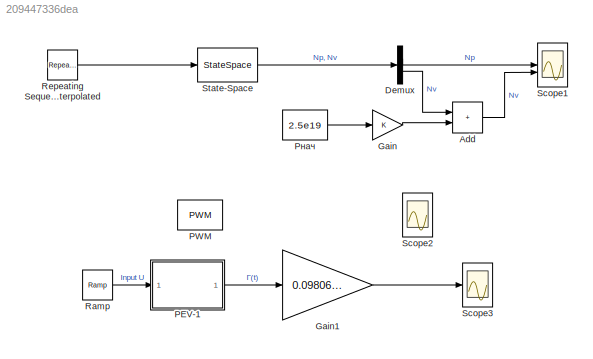
MODEL slx_209447336dea
KIND model
CONFIG AbsTol = auto
CONFIG EnableMultiTasking = off
CONFIG FixedStep = auto
CONFIG MaxStep = auto
CONFIG MinStep = auto
CONFIG RelTol = 1e-6
CONFIG SampleTimeConstraint = Unconstrained
CONFIG SolverName = VariableStepAuto
CONFIG StartTime = 0.0
CONFIG StopTime = 2
WORKSPACE source: mxarray member
WORKSPACE G = [1.4 1.5 0.6 0.6 0.6 0.6 0.2 0.2 0.2 1.3 1.3 0.2 ... (32 elements, 1x32)]
BLOCK [Sum] Add
  IconShape = rectangular
BLOCK [Demux] Demux
  Outputs = 2
BLOCK [Gain] Gain
BLOCK [Gain] Gain1
  Gain = 0.0980665*6.02e23/(60*8.31*300)
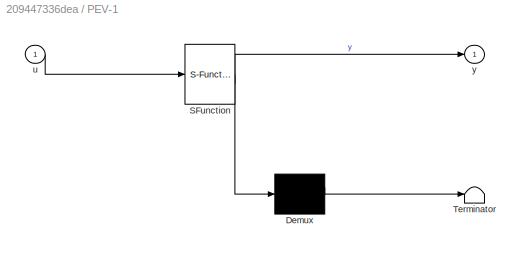
BLOCK [SubSystem] PEV-1
  ErrorFcn = Stateflow.Translate.translate
  PermitHierarchicalResolution = ExplicitOnly
  SFBlockType = MATLAB Function
  TreatAsAtomicUnit = on
BLOCK [Demux] PEV-1/ Demux 
  Outputs = 1
BLOCK [S-Function] PEV-1/ SFunction 
  EnableBusSupport = off
  FunctionName = sf_sfun
  PortCounts = [1 2]
  SFcnIsStateOwnerBlock = off
  SFunctionDeploymentMode = off
  Tag = Stateflow S-Function 1
BLOCK [Terminator] PEV-1/ Terminator 
BLOCK [Inport] PEV-1/u
BLOCK [Outport] PEV-1/y
BLOCK [Reference] PWM  REF=simulink/Discontinuities/PWM
  DisableCoverage = on
  SourceBlock = simulink/Discontinuities/PWM
  SourceType = PWM
BLOCK [Constant] Pнач
  Value = 2.5e19
BLOCK [Reference] Ramp  REF=simulink/Sources/Ramp
  SourceBlock = simulink/Sources/Ramp
  SourceType = Ramp
BLOCK [Reference] Repeating Sequence Interpolated  REF=simulink/Sources/Repeating
Sequence
Interpolated
  SourceBlock = simulink/Sources/Repeating\nSequence\nInterpolated
  SourceType = Repeating Sequence Interpolated
BLOCK [Scope] Scope1
  Floating = off
  NumInputPorts = 2
  ScopeSpecificationString = Simulink.scopes.TimeScopeBlockCfg('CurrentConfiguration', extmgr.ConfigurationSet(extmgr.Configuration('Core','General UI',true,'FigureColor',[1 1 1]),extmgr.Configuration('Core','Source UI',true),extmgr.Configuration('Sources','WiredSimulink',true,'DataLoggingVariableName','ScopeData1'),extmgr.Configuration('Visuals','Time Domain',true,'SerializedDisplays',{struct('MinYLimReal','-9950325466005475...<+2489ch>
BLOCK [Scope] Scope2
  Floating = off
  NumInputPorts = 1
  ScopeSpecificationString = Simulink.scopes.TimeScopeBlockCfg('CurrentConfiguration', extmgr.ConfigurationSet(extmgr.Configuration('Core','General UI',true,'FigureColor',[1 1 1]),extmgr.Configuration('Core','Source UI',true),extmgr.Configuration('Sources','WiredSimulink',true,'DataLoggingVariableName','ScopeData1'),extmgr.Configuration('Visuals','Time Domain',true,'SerializedDisplays',{struct('MinYLimReal','-119.01705','MaxY...<+1733ch>
BLOCK [Scope] Scope3
  Floating = off
  NumInputPorts = 1
  ScopeSpecificationString = Simulink.scopes.TimeScopeBlockCfg('CurrentConfiguration', extmgr.ConfigurationSet(extmgr.Configuration('Core','General UI',true,'FigureColor',[1 1 1]),extmgr.Configuration('Core','Source UI',true),extmgr.Configuration('Sources','WiredSimulink',true,'DataLoggingVariableName','ScopeData1'),extmgr.Configuration('Visuals','Time Domain',true,'SerializedDisplays',{struct('MinYLimReal','-119.01705','MaxY...<+1733ch>
BLOCK [StateSpace] State-Space
  A = A
  B = B
  C = C
  D = D
  InitialCondition = 0
LINE Add:1 -> Scope1:2
LINE Demux:1 -> Scope1:1
LINE Demux:2 -> Add:1
LINE Gain1:1 -> Scope3:1
LINE Gain:1 -> Add:2
LINE PEV-1:1 -> Gain1:1
LINE Pнач:1 -> Gain:1
LINE Ramp:1 -> PEV-1:1
LINE Repeating Sequence Interpolated:1 -> State-Space:1
LINE State-Space:1 -> Demux:1
CHART PEV-1 states=1 transitions=1
  STATE_LABEL 'eML_blk_kernel()'
  STATE_LABEL 'SCRIPT:\nfunction y = PEV(u)\n    y_vals = [0, 18, 28, 42, 62, 80, 100, 123, 154, 180, 200, 232, 259, 280, 300, 323, 346, 360, 400, 433, 450, 478, 500, 538, 552, 580, 600, 635, 668, 700, 729, 750, 770, 800, 839, 870, 900, 930, 958, 988, 1000, 1050, 1100];\n    x_vals = [20, 32, 35, 40, 44.8, 48.2, 50, 52.2, 54.8, 56.5, 57.5, 60, 61.7, 62.8, 63.9, 65, 66.1, 67.5, 70, 71, 72, 74, 75, 76.5, 78, 80, 82, ...<+137ch>'
CHART  states=0 transitions=0
